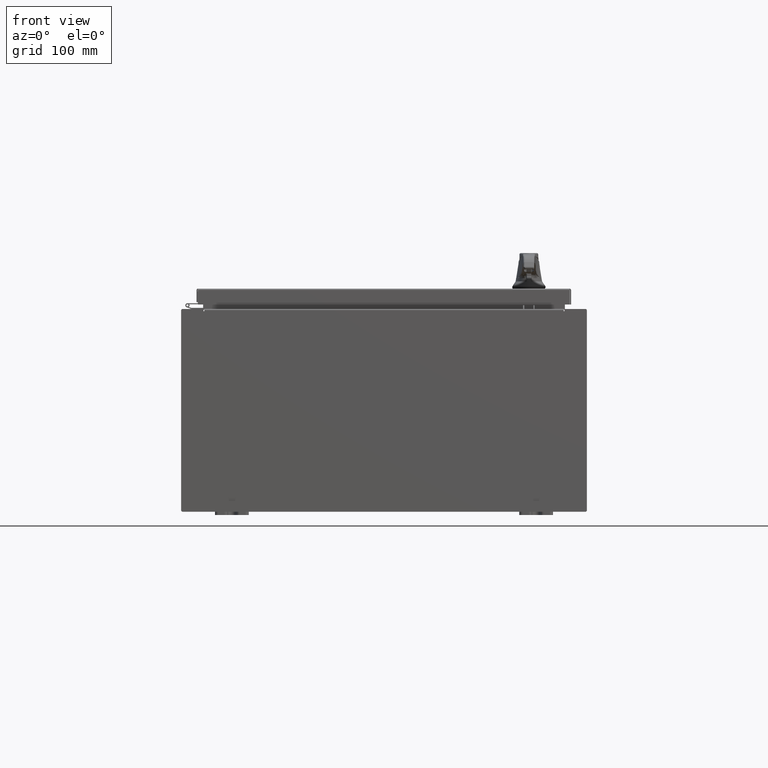
[diagram: clean part render]
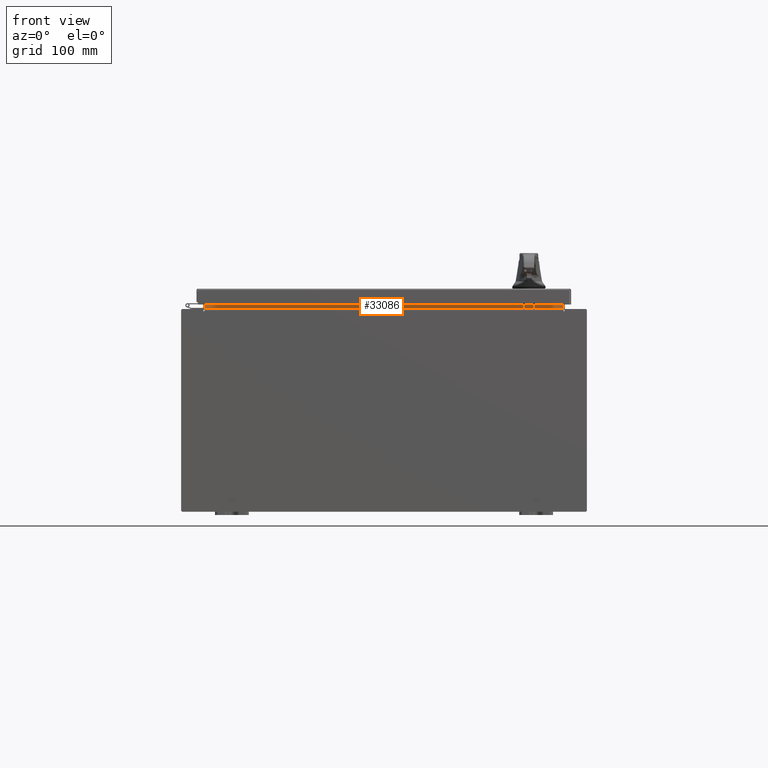
[diagram: same view with one face highlighted and labeled with its STEP entity id]
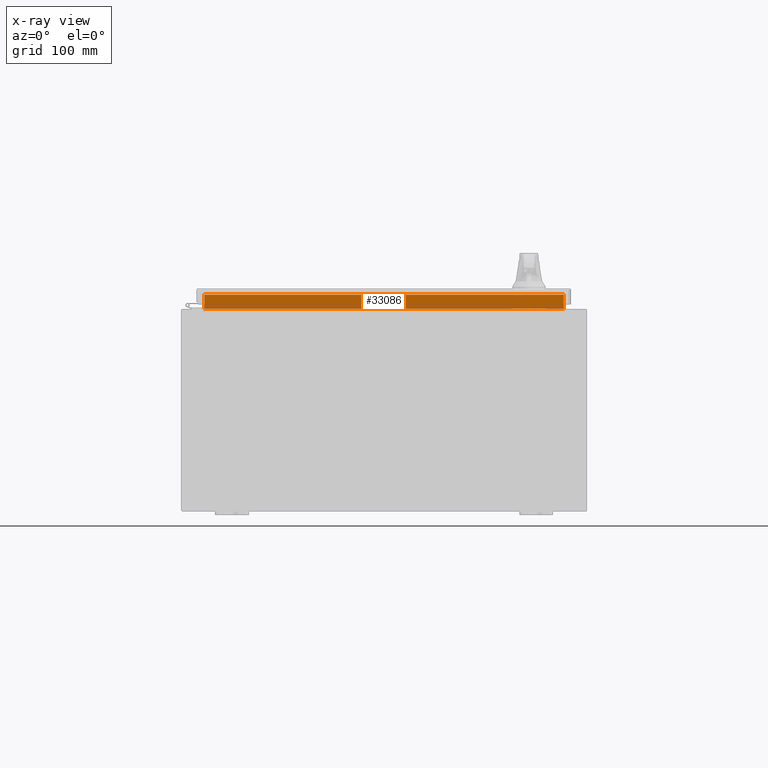
[diagram: x-ray of the same camera — body ghosted, the highlighted face saturated]
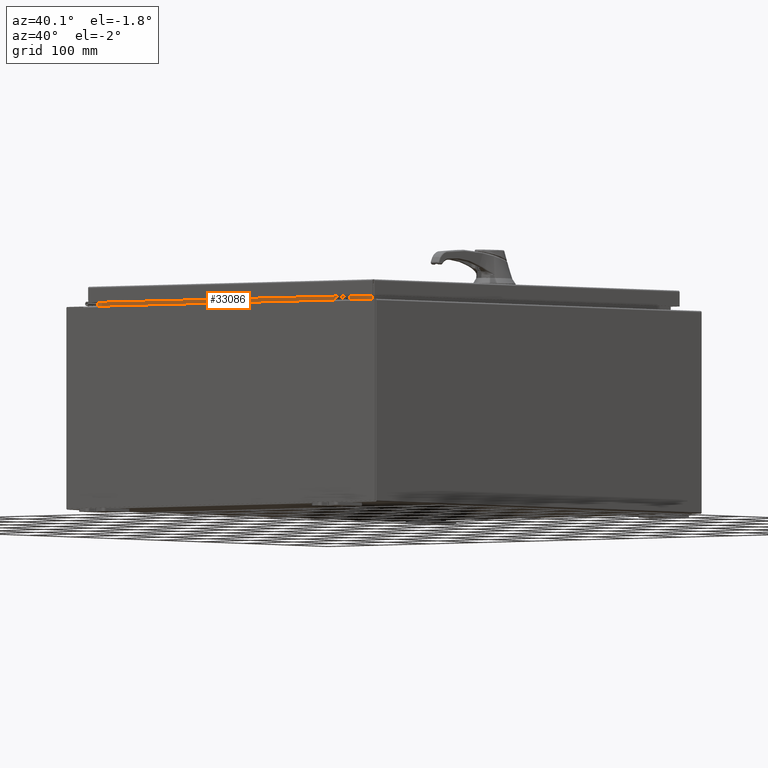
[diagram: same view with one face highlighted and labeled with its STEP entity id]
A machine part, front view. The second image highlights one B-rep face of the part: STEP entity #33086.
The next image is the same camera in x-ray: the body ghosted, the highlighted face saturated — about 0% of this face is hidden behind the body in this view.
A second angle (auxiliary view) of the same face is appended — the face is thin or edge-on in the first view.
In plain terms, the highlighted planar face has unit normal (0, -1, 0).
Its self-contained STEP definition (entity closure, byte-faithful):
#3292 = ORIENTED_EDGE ( 'NONE', *, *, #37746, .F. ) ;
#7091 = EDGE_CURVE ( 'NONE', #46993, #59294, #74716, .T. ) ;
#7636 = VERTEX_POINT ( 'NONE', #52414 ) ;
#18497 = CARTESIAN_POINT ( 'NONE',  ( 1.183117784283575500E-031, -1.300299999999994700, -1.151698458714456500E-015 ) ) ;
#19212 = CARTESIAN_POINT ( 'NONE',  ( 10.63720000000000400, -1.300299999999999800, 6.013000000000005200 ) ) ;
#20520 = LINE ( 'NONE', #44230, #44930 ) ;
#25928 = CARTESIAN_POINT ( 'NONE',  ( -10.63719999999998800, -1.300300000000000900, 6.837600000000007200 ) ) ;
#26237 = EDGE_CURVE ( 'NONE', #43859, #46993, #90627, .T. ) ;
#26727 = ORIENTED_EDGE ( 'NONE', *, *, #113278, .F. ) ;
#27695 = DIRECTION ( 'NONE',  ( 0.0000000000000000000, -8.857174949738224200E-016, 1.000000000000000000 ) ) ;
#28858 = VECTOR ( 'NONE', #66277, 39.37007874015748100 ) ;
#29915 = CARTESIAN_POINT ( 'NONE',  ( -10.63720000000000200, -1.300299999999999800, 6.000000000000003600 ) ) ;
#33086 = ADVANCED_FACE ( 'NONE', ( #101161 ), #73373, .T. ) ;
#35460 = LINE ( 'NONE', #116005, #105602 ) ;
#37746 = EDGE_CURVE ( 'NONE', #59294, #7636, #20520, .T. ) ;
#41918 = VECTOR ( 'NONE', #103532, 39.37007874015748100 ) ;
#43859 = VERTEX_POINT ( 'NONE', #25928 ) ;
#44230 = CARTESIAN_POINT ( 'NONE',  ( 10.63720000000000200, -1.300300000000000700, 6.925300000000007100 ) ) ;
#44930 = VECTOR ( 'NONE', #89859, 39.37007874015748100 ) ;
#46993 = VERTEX_POINT ( 'NONE', #96724 ) ;
#52027 = DIRECTION ( 'NONE',  ( -1.000000000000000000, -0.0000000000000000000, -0.0000000000000000000 ) ) ;
#52414 = CARTESIAN_POINT ( 'NONE',  ( 10.63720000000000200, -1.300300000000000700, 6.837600000000007200 ) ) ;
#55339 = ORIENTED_EDGE ( 'NONE', *, *, #7091, .F. ) ;
#57056 = CARTESIAN_POINT ( 'NONE',  ( -10.63720000000000200, -1.300299999999999800, 6.013000000000003500 ) ) ;
#58081 = AXIS2_PLACEMENT_3D ( 'NONE', #18497, #82580, #27695 ) ;
#59294 = VERTEX_POINT ( 'NONE', #19212 ) ;
#66277 = DIRECTION ( 'NONE',  ( 1.000000000000000000, 1.027280861002618300E-016, 1.027280861002618300E-016 ) ) ;
#68876 = ORIENTED_EDGE ( 'NONE', *, *, #26237, .F. ) ;
#73373 = PLANE ( 'NONE',  #58081 ) ;
#74716 = LINE ( 'NONE', #57056, #28858 ) ;
#80347 = EDGE_LOOP ( 'NONE', ( #68876, #26727, #3292, #55339 ) ) ;
#82580 = DIRECTION ( 'NONE',  ( -9.098806308417904000E-032, 1.000000000000000000, 8.857174949738224200E-016 ) ) ;
#89859 = DIRECTION ( 'NONE',  ( -0.0000000000000000000, -8.857174949738224200E-016, 1.000000000000000000 ) ) ;
#90627 = LINE ( 'NONE', #29915, #41918 ) ;
#96724 = CARTESIAN_POINT ( 'NONE',  ( -10.63720000000000400, -1.300299999999999800, 6.013000000000005200 ) ) ;
#101161 = FACE_OUTER_BOUND ( 'NONE', #80347, .T. ) ;
#103532 = DIRECTION ( 'NONE',  ( -0.0000000000000000000, 8.857174949738214300E-016, -1.000000000000000000 ) ) ;
#105602 = VECTOR ( 'NONE', #52027, 39.37007874015748100 ) ;
#113278 = EDGE_CURVE ( 'NONE', #7636, #43859, #35460, .T. ) ;
#116005 = CARTESIAN_POINT ( 'NONE',  ( 10.63719999999999600, -1.300300000000000900, 6.837600000000007200 ) ) ;